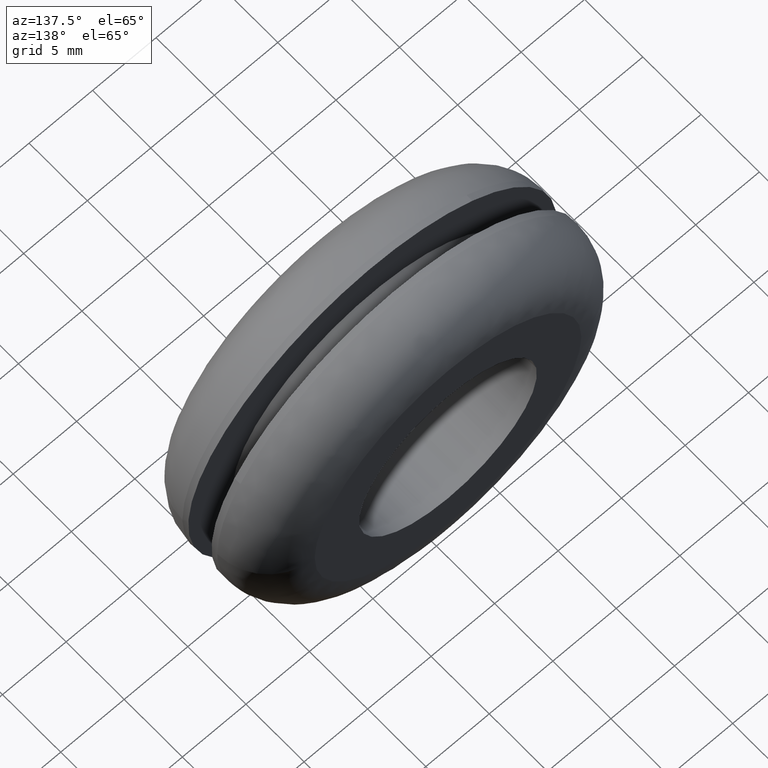
[diagram: clean part render]
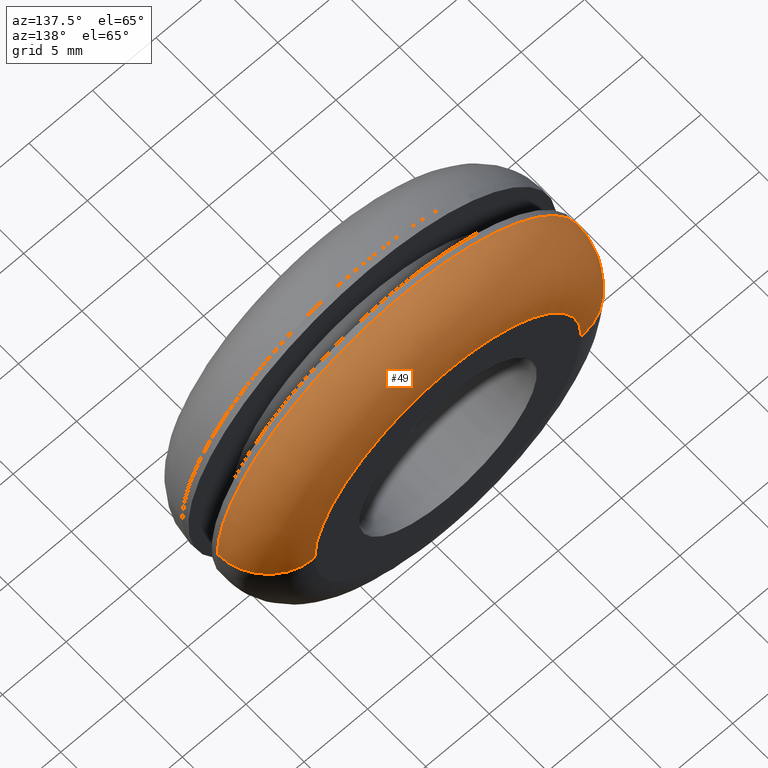
[diagram: same view with one face highlighted and labeled with its STEP entity id]
A machine part, auxiliary view. The second image highlights one B-rep face of the part: STEP entity #49.
In plain terms, the highlighted face is a freeform B-spline surface patch.
Its self-contained STEP definition (entity closure, byte-faithful):
#49=ADVANCED_FACE('',(#151),#150,.T.);
#150=( BOUNDED_SURFACE() B_SPLINE_SURFACE( 2,2,((#290,#291,#292,#293,#294),(#295,#296,#297,#298,#299),(#300,#301,#302,#303,#304),(#305,#306,#307,#308,#309),(#310,#311,#312,#313,#314)), .UNSPECIFIED.,.F.,.F.,.F.) B_SPLINE_SURFACE_WITH_KNOTS((3,2,3),(3,2,3),(0.00000000000E+000,5.00000000000E-001,1.00000000000E+000),(0.00000000000E+000,5.00000000000E-001,1.00000000000E+000), .UNSPECIFIED. ) GEOMETRIC_REPRESENTATION_ITEM() RATIONAL_B_SPLINE_SURFACE(((1.00000000000E+000,7.07106781004E-001,1.00000000000E+000,7.07106781004E-001,1.00000000000E+000),(7.07106781187E-001,4.99999999871E-001,7.07106781187E-001,4.99999999871E-001,7.07106781187E-001),(1.00000000000E+000,7.07106781004E-001,1.00000000000E+000,7.07106781004E-001,1.00000000000E+000),(7.07106781187E-001,4.99999999871E-001,7.07106781187E-001,4.99999999871E-001,7.07106781187E-001),(1.00000000000E+000,7.07106781004E-001,1.00000000000E+000,7.07106781004E-001,1.00000000000E+000))) REPRESENTATION_ITEM('') SURFACE() );
#151=FACE_OUTER_BOUND('',#315,.T.);
#290=CARTESIAN_POINT('',(6.50000000000E+000,6.99999999588E+000,4.16225187749E-013));
#291=CARTESIAN_POINT('',(6.49999999588E+000,1.09999999979E+001,3.95379352621E-013));
#292=CARTESIAN_POINT('',(1.04999999979E+001,1.10000000000E+001,3.95379336432E-013));
#293=CARTESIAN_POINT('',(1.45000000000E+001,1.10000000021E+001,3.95379320243E-013));
#294=CARTESIAN_POINT('',(1.45000000000E+001,7.00000000000E+000,4.16225155371E-013));
#295=CARTESIAN_POINT('',(6.50000000000E+000,6.99999999588E+000,6.50000000001E+000));
#296=CARTESIAN_POINT('',(6.49999999588E+000,1.09999999979E+001,6.49999999589E+000));
#297=CARTESIAN_POINT('',(1.04999999979E+001,1.10000000000E+001,1.04999999980E+001));
#298=CARTESIAN_POINT('',(1.45000000000E+001,1.10000000021E+001,1.45000000000E+001));
#299=CARTESIAN_POINT('',(1.45000000000E+001,7.00000000000E+000,1.45000000000E+001));
#300=CARTESIAN_POINT('',(-1.29284960317E-011,6.99999999588E+000,6.50000000001E+000));
#301=CARTESIAN_POINT('',(-1.12697244996E-011,1.09999999979E+001,6.49999999589E+000));
#302=CARTESIAN_POINT('',(-1.12694795532E-011,1.10000000000E+001,1.04999999980E+001));
#303=CARTESIAN_POINT('',(-1.12692346068E-011,1.10000000021E+001,1.45000000000E+001));
#304=CARTESIAN_POINT('',(-1.29280061389E-011,7.00000000000E+000,1.45000000000E+001));
#305=CARTESIAN_POINT('',(-6.50000000003E+000,6.99999999588E+000,6.50000000001E+000));
#306=CARTESIAN_POINT('',(-6.49999999590E+000,1.09999999979E+001,6.49999999589E+000));
#307=CARTESIAN_POINT('',(-1.04999999980E+001,1.10000000000E+001,1.04999999980E+001));
#308=CARTESIAN_POINT('',(-1.45000000000E+001,1.10000000021E+001,1.45000000000E+001));
#309=CARTESIAN_POINT('',(-1.45000000000E+001,7.00000000001E+000,1.45000000000E+001));
#310=CARTESIAN_POINT('',(-6.50000000003E+000,6.99999999588E+000,4.17021260748E-013));
#311=CARTESIAN_POINT('',(-6.49999999590E+000,1.09999999979E+001,3.96175425618E-013));
#312=CARTESIAN_POINT('',(-1.04999999980E+001,1.10000000000E+001,3.96665300506E-013));
#313=CARTESIAN_POINT('',(-1.45000000000E+001,1.10000000021E+001,3.97155175393E-013));
#314=CARTESIAN_POINT('',(-1.45000000000E+001,7.00000000001E+000,4.18001010522E-013));
#315=EDGE_LOOP('',(#445,#446,#447,#448,#449,#450));
#445=ORIENTED_EDGE('',*,*,#503,.T.);
#446=ORIENTED_EDGE('',*,*,#530,.T.);
#447=ORIENTED_EDGE('',*,*,#532,.F.);
#448=ORIENTED_EDGE('',*,*,#533,.F.);
#449=ORIENTED_EDGE('',*,*,#534,.F.);
#450=ORIENTED_EDGE('',*,*,#531,.F.);
#503=EDGE_CURVE('',#633,#625,#634,.T.);
#530=EDGE_CURVE('',#625,#811,#818,.T.);
#531=EDGE_CURVE('',#633,#790,#824,.T.);
#532=EDGE_CURVE('',#830,#811,#831,.T.);
#533=EDGE_CURVE('',#837,#830,#838,.T.);
#534=EDGE_CURVE('',#790,#837,#844,.T.);
#625=VERTEX_POINT('',#946);
#633=VERTEX_POINT('',#952);
#634=CIRCLE('',#956,1.05000000004E+001);
#790=VERTEX_POINT('',#1055);
#811=VERTEX_POINT('',#1070);
#818=(BOUNDED_CURVE() B_SPLINE_CURVE(2,(#1075,#1076,#1077),.UNSPECIFIED.,.F.,.F.) B_SPLINE_CURVE_WITH_KNOTS((3,3),(5.00000000000E-001,1.00000000000E+000),.UNSPECIFIED.) CURVE() GEOMETRIC_REPRESENTATION_ITEM() RATIONAL_B_SPLINE_CURVE((1.00000000000E+000,7.07106781004E-001,1.00000000000E+000)) REPRESENTATION_ITEM('') );
#824=(BOUNDED_CURVE() B_SPLINE_CURVE(3,(#1078,#1079,#1080,#1081,#1082),.UNSPECIFIED.,.F.,.F.) B_SPLINE_CURVE_WITH_KNOTS((4,1,4),(4.99999873917E-001,7.49999927445E-001,1.00000000000E+000),.UNSPECIFIED.) CURVE() GEOMETRIC_REPRESENTATION_ITEM() RATIONAL_B_SPLINE_CURVE((1.00000000000E+000,1.00000000000E+000,1.00000000000E+000,1.00000000000E+000,1.00000000000E+000)) REPRESENTATION_ITEM('') );
#830=VERTEX_POINT('',#1083);
#831=CIRCLE('',#1087,1.45000000000E+001);
#837=VERTEX_POINT('',#1088);
#838=CIRCLE('',#1092,1.45000000000E+001);
#844=CIRCLE('',#1096,1.45000000000E+001);
#946=CARTESIAN_POINT('',(-1.05000000005E+001,1.10000000000E+001,3.96662329619E-013));
#952=CARTESIAN_POINT('',(1.04999999437E+001,1.10000000000E+001,1.08972896231E-003));
#953=CARTESIAN_POINT('',(-1.66893165954E-010,1.10000000000E+001,-3.81007225769E-010));
#954=DIRECTION('',(-5.13027856862E-016,-1.00000000000E+000,-7.33909531553E-015));
#955=DIRECTION('',(1.58949381435E-011,7.33909531552E-015,-1.00000000000E+000));
#956=AXIS2_PLACEMENT_3D('',#953,#954,#955);
#1055=CARTESIAN_POINT('',(1.45000000000E+001,6.99999999997E+000,2.93799055486E-006));
#1070=CARTESIAN_POINT('',(-1.45000000000E+001,6.99999999997E+000,4.12667558230E-013));
#1075=CARTESIAN_POINT('',(-1.04999999980E+001,1.10000000000E+001,3.94093542228E-013));
#1076=CARTESIAN_POINT('',(-1.45000000000E+001,1.10000000021E+001,3.93603699676E-013));
#1077=CARTESIAN_POINT('',(-1.45000000000E+001,7.00000000001E+000,4.14449534804E-013));
#1078=CARTESIAN_POINT('',(1.04999985715E+001,1.10000000000E+001,3.96719694129E-013));
#1079=CARTESIAN_POINT('',(1.15324482715E+001,1.10073772446E+001,3.97169837659E-013));
#1080=CARTESIAN_POINT('',(1.36369406041E+001,1.01369418067E+001,4.02129042660E-013));
#1081=CARTESIAN_POINT('',(1.45073768793E+001,8.03244978095E+000,4.12142681540E-013));
#1082=CARTESIAN_POINT('',(1.45000000000E+001,7.00000000000E+000,4.16851738313E-013));
#1083=CARTESIAN_POINT('',(-1.44988551410E+001,7.00000000003E+000,1.82207578317E-001));
#1084=CARTESIAN_POINT('',(-3.55271367880E-015,7.00000000004E+000,0.00000000000E+000));
#1085=DIRECTION('',(4.84052378386E-012,-1.00000000000E+000,2.87095716045E-010));
#1086=DIRECTION('',(9.99921044204E-001,1.23248537812E-012,-1.25660398839E-002));
#1087=AXIS2_PLACEMENT_3D('',#1084,#1085,#1086);
#1088=CARTESIAN_POINT('',(1.26867244963E+001,7.00000000000E+000,7.02118377156E+000));
#1089=CARTESIAN_POINT('',(3.64153152077E-014,7.00000000000E+000,5.32907051820E-013));
#1090=DIRECTION('',(-2.52817486083E-017,-1.00000000000E+000,-3.06937719364E-014));
#1091=DIRECTION('',(-8.74946516989E-001,1.48846452405E-014,-4.84219570452E-001));
#1092=AXIS2_PLACEMENT_3D('',#1089,#1090,#1091);
#1093=CARTESIAN_POINT('',(1.93622895495E-012,7.00000000033E+000,4.44089209850E-016));
#1094=DIRECTION('',(-2.46075443539E-011,-1.00000000000E+000,-4.99104357406E-011));
#1095=DIRECTION('',(-9.97565673840E-001,2.10672245932E-011,6.97332515756E-002));
#1096=AXIS2_PLACEMENT_3D('',#1093,#1094,#1095);